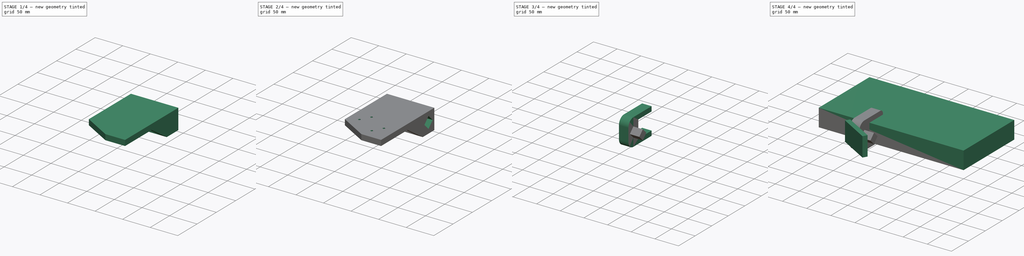
[diagram: build sequence overview — one tinted view per stage of 4, left to right]
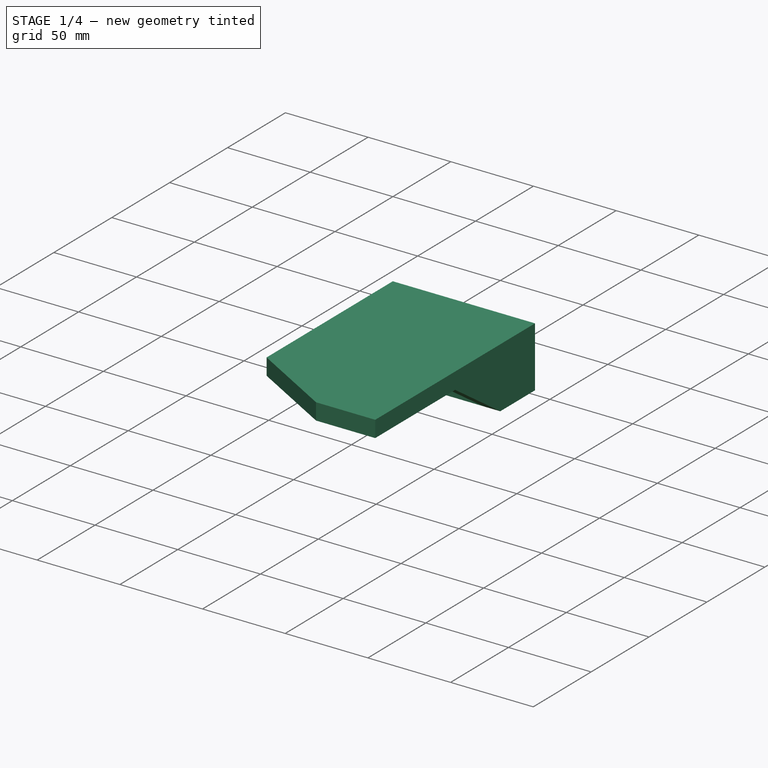
[diagram: stage 1 of 4 — iso view after this stage's code; geometry added in this stage tinted green]
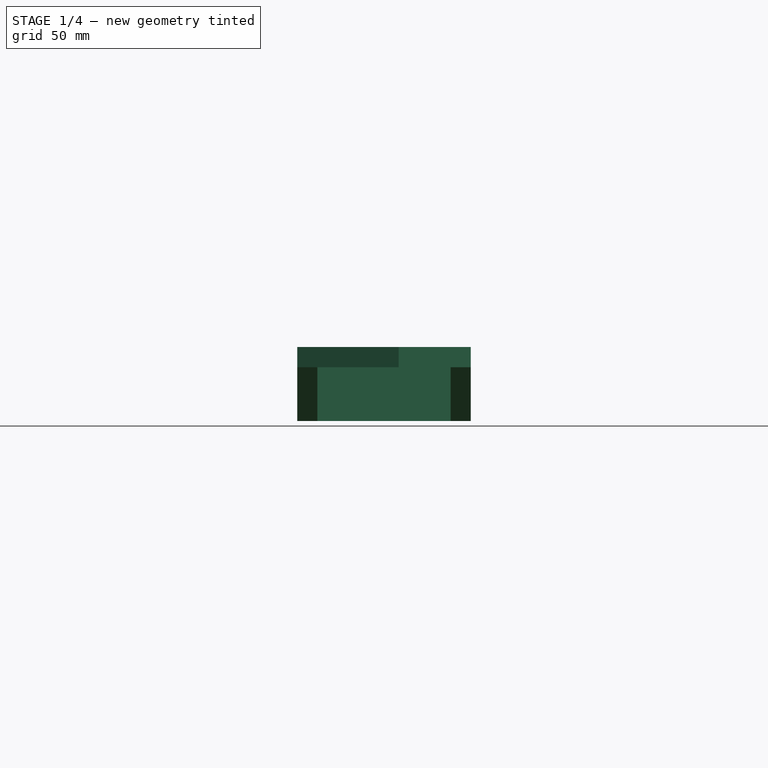
[diagram: stage 1 of 4 — front view after this stage's code; geometry added in this stage tinted green]
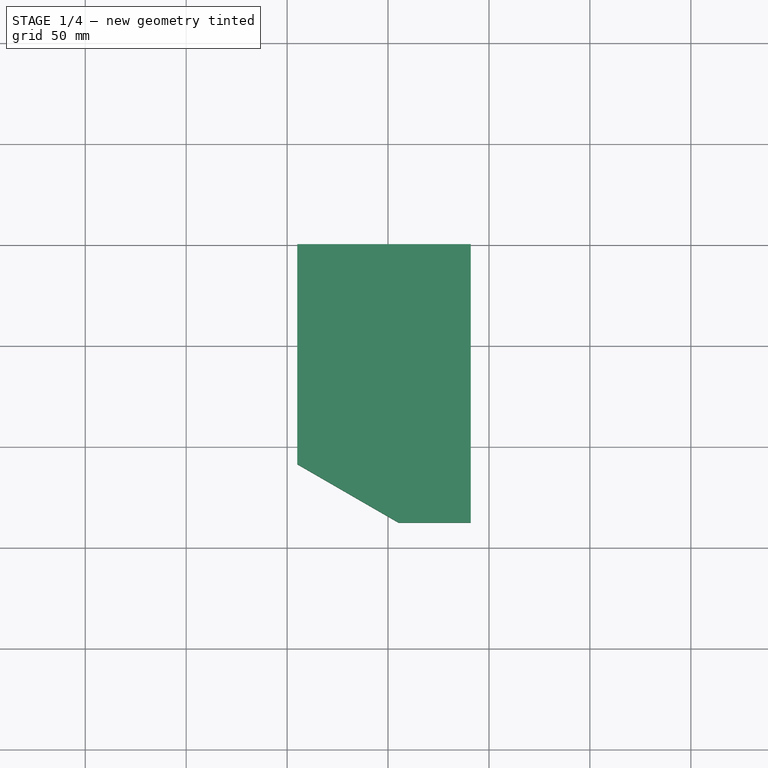
[diagram: stage 1 of 4 — top view after this stage's code; geometry added in this stage tinted green]
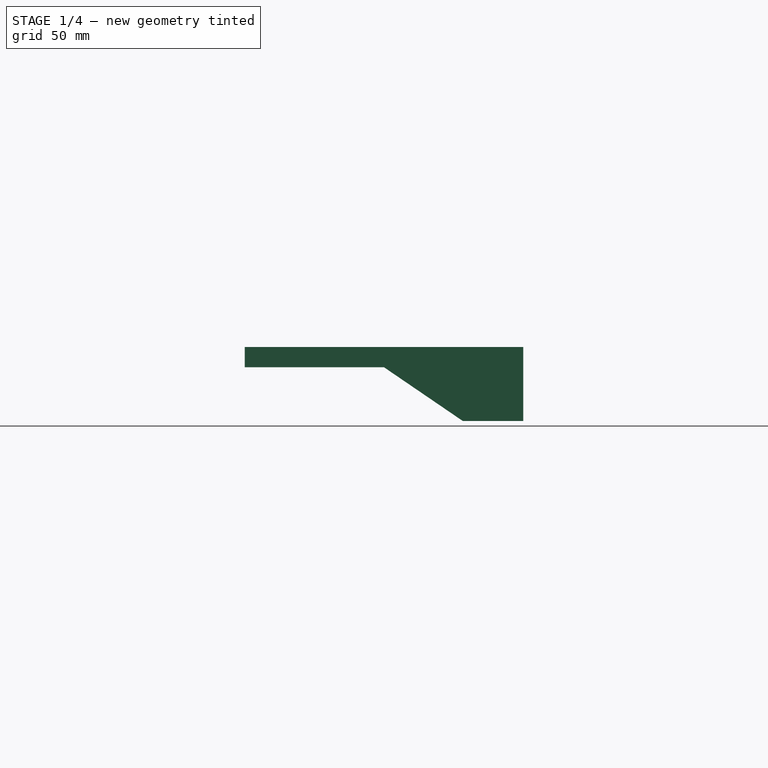
[diagram: stage 1 of 4 — right view after this stage's code; geometry added in this stage tinted green]
FCSTD DOCUMENT  (FreeCAD 0.20R29177 +426 (Git))
Label: kitchen_shelf
License: All rights reserved
LicenseURL: http://en.wikipedia.org/wiki/All_rights_reserved
objects: Sketcher::SketchObject×10, PartDesign::Pad×7, PartDesign::Body×4, PartDesign::Pocket×3, PartDesign::Fillet×3, Spreadsheet::Sheet×1, App::Part×1, PartDesign::ShapeBinder×1
note: 41 computed .brp shape members not serialized (recipe doc carries the construction recipe); baked Part::Feature solids carry a one-line shape summary decoded from their .brp

FEATURE [PartDesign::Body] Body001  label="Kitchen Counter"
  Group = -> [Sketch001,Pad001]
  Origin = -> Origin002
  Tip = -> Pad001
FEATURE [App::Part] Part  label="Immovable"
  Group = -> [Body,Body001]
  Origin = -> Origin001
FEATURE [Sketcher::SketchObject] Sketch002  label="Rack Bracket Base Body"
  FullyConstrained = true
  MapMode = 5
  Support = -> [XY_Plane003]
  sketch-geometry (5):
    g0: LineSegment StartX=-45 StartY=0 StartZ=0 EndX=41 EndY=0 EndZ=0
    g1: LineSegment StartX=41 StartY=0 StartZ=0 EndX=41 EndY=-138 EndZ=0
    g2: LineSegment StartX=41 StartY=-138 StartZ=0 EndX=5.22947 EndY=-138 EndZ=0
    g3: LineSegment StartX=-45 StartY=-109 StartZ=0 EndX=-45 EndY=0 EndZ=0
    g4: LineSegment StartX=-45 StartY=-109 StartZ=0 EndX=5.22947 EndY=-138 EndZ=0
  constraints (15):
    c: Coincident(g0,g1)
    c: Coincident(g1,g2)
    c: Coincident(g3,g0)
    c: Horizontal(g0)
    c: Horizontal(g2)
    c: Vertical(g1)
    c: Vertical(g3)
    c: PointOnObject(g0,g-1)
    c: Coincident(g3,g4)
    c: Coincident(g2,g4)
    c: DistanceY(g1,g1) = 138
    c: Angle(g2,g4) = 2.61799
    c: DistanceY(g3,g3) = 109
    c: DistanceX(g0,g0) = 86
    c: DistanceX(g0,g-1) = 45
FEATURE [PartDesign::Pad] Pad002  label="Rack Bracket Base Body Pad"
  Direction = (0,0,1)
  Length = 3
  Length2 = 10
  Profile = -> Sketch002
  ReferenceAxis = -> Sketch002 [N_Axis]
  Reversed = true
  Type = 0
  expr: Length = <<$params>>.thickness
FEATURE [Sketcher::SketchObject] Sketch003  label="Rack Bracket Ridge Sketch"
  ExternalGeometry = -> [Sketch002]
  FullyConstrained = true
  MapMode = 5
  Placement = pos=(0,0,-3) rot=(1,0,0;3.14159rad)
  Support = -> [Pad002]
  expr: Constraints[38] = <<$params>>.rack_bracket_depth
  sketch-geometry (14):
    g0: LineSegment StartX=-45 StartY=109 StartZ=0 EndX=-45 EndY=0 EndZ=0
    g1: LineSegment StartX=41 StartY=138 StartZ=0 EndX=41 EndY=0 EndZ=0
    g2: LineSegment StartX=5.22947 StartY=138 StartZ=0 EndX=-45 EndY=109 EndZ=0
    g3: LineSegment StartX=41 StartY=138 StartZ=0 EndX=5.22947 EndY=138 EndZ=0
    g4: LineSegment StartX=41 StartY=0 StartZ=0 EndX=-45 EndY=0 EndZ=0
    g5: LineSegment StartX=-35 StartY=30 StartZ=0 EndX=31 EndY=30 EndZ=0
    g6: LineSegment StartX=-35 StartY=103.226 StartZ=0 EndX=-35 EndY=30 EndZ=0
    g7: LineSegment StartX=-35 StartY=103.226 StartZ=0 EndX=7.90897 EndY=128 EndZ=0
    g8: LineSegment StartX=7.90897 StartY=128 StartZ=0 EndX=31 EndY=128 EndZ=0
    g9: LineSegment StartX=31 StartY=128 StartZ=0 EndX=31 EndY=30 EndZ=0
    g10: LineSegment StartX=-35 StartY=103.226 StartZ=0 EndX=-40 EndY=111.887 EndZ=0
    g11: LineSegment StartX=-35 StartY=103.226 StartZ=0 EndX=-45 EndY=103.226 EndZ=0
    g12: LineSegment StartX=7.90897 StartY=128 StartZ=0 EndX=7.90897 EndY=138 EndZ=0
    g13: LineSegment StartX=31 StartY=128 StartZ=0 EndX=41 EndY=128 EndZ=0
  constraints (39):
    c: Coincident(g0,g-3)
    c: PointOnObject(g0,g-1)
    c: Coincident(g1,g-4)
    c: PointOnObject(g1,g-1)
    c: Coincident(g2,g-4)
    c: Coincident(g2,g0)
    c: Coincident(g3,g1)
    c: Coincident(g3,g2)
    c: Coincident(g4,g1)
    c: Coincident(g4,g0)
    c: Vertical(g0)
    c: Vertical(g1)
    c: Horizontal(g5)
    c: Coincident(g6,g5)
    c: Vertical(g6)
    c: Coincident(g7,g6)
    c: Coincident(g8,g7)
    c: Horizontal(g8)
    c: Coincident(g9,g8)
    c: Coincident(g9,g5)
    c: Vertical(g9)
    c: Coincident(g10,g6)
    c: PointOnObject(g10,g2)
    c: Coincident(g11,g6)
    c: PointOnObject(g11,g0)
    c: Horizontal(g11)
    c: Coincident(g12,g7)
    c: PointOnObject(g12,g3)
    c: Vertical(g12)
    c: Coincident(g13,g8)
    c: PointOnObject(g13,g1)
    c: Horizontal(g13)
    c: Perpendicular(g7,g10)
    c: Perpendicular(g2,g10)
    c: Equal(g11,g10)
    c: Equal(g10,g12)
    c: Equal(g12,g13)
    c: DistanceX(g13,g13) = 10
    c: DistanceY(g0,g5) = 30
FEATURE [PartDesign::Pad] Pad003  label="Rack Bracket Ridge Pad"
  BaseFeature = -> Pad002
  Direction = (0,0,-1)
  Length = 33.6
  Length2 = 10
  Profile = -> Sketch003
  ReferenceAxis = -> Sketch003 [N_Axis]
  Refine = true
  Type = 0
  expr: Length = <<$params>>.counter_height - <<$params>>.thickness
FEATURE [Sketcher::SketchObject] Sketch004  label="Rack Bracket Ridge Shaping Cut Sketch"
  ExternalGeometry = -> [Sketch002]
  FullyConstrained = true
  MapMode = 5
  Placement = pos=(-45,0,0) rot=(0.57735,-0.57735,-0.57735;2.0944rad)
  Support = -> [Pad003]
  expr: Constraints[10] = <<$params>>.counter_height
  expr: Constraints[16] = <<$params>>.rack_bracket_ridge_height
  expr: Constraints[17] = <<$params>>.rack_bracket_depth
  sketch-geometry (7):
    g0: LineSegment StartX=0 StartY=0 StartZ=0 EndX=0 EndY=-36.6 EndZ=0
    g1: LineSegment StartX=0 StartY=-36.6 StartZ=0 EndX=30 EndY=-36.6 EndZ=0
    g2: LineSegment StartX=30 StartY=-36.6 StartZ=0 EndX=69 EndY=-10 EndZ=0
    g3: LineSegment StartX=69 StartY=-10 StartZ=0 EndX=138 EndY=-10 EndZ=0
    g4: LineSegment StartX=138 StartY=0 StartZ=0 EndX=138 EndY=-10 EndZ=0
    g5: LineSegment StartX=138 StartY=-10 StartZ=0 EndX=138 EndY=-36.6 EndZ=0
    g6: LineSegment StartX=30 StartY=-36.6 StartZ=0 EndX=138 EndY=-36.6 EndZ=0
  constraints (19):
    c: Coincident(g0,g-1)
    c: PointOnObject(g0,g-2)
    c: Coincident(g1,g0)
    c: Horizontal(g1)
    c: Coincident(g2,g1)
    c: Coincident(g3,g2)
    c: Horizontal(g3)
    c: Coincident(g4,g-3)
    c: Coincident(g4,g3)
    c: Vertical(g4)
    c: DistanceY(g0,g0) = 36.6
    c: Coincident(g5,g3)
    c: Vertical(g5)
    c: Coincident(g6,g2)
    c: Coincident(g6,g5)
    c: Horizontal(g6)
    c: DistanceY(g4,g4) = 10
    c: DistanceX(g1,g1) = 30
    c: DistanceX(g3,g3) = 69
FEATURE [PartDesign::Pocket] Pocket  label="Rack Bracket Ridge Shaping Cut"
  BaseFeature = -> Pad003
  Direction = (1,0,0)
  Length = 5
  Length2 = 5
  Profile = -> Sketch004
  ReferenceAxis = -> Sketch004 [N_Axis]
  Refine = true
  Type = 1
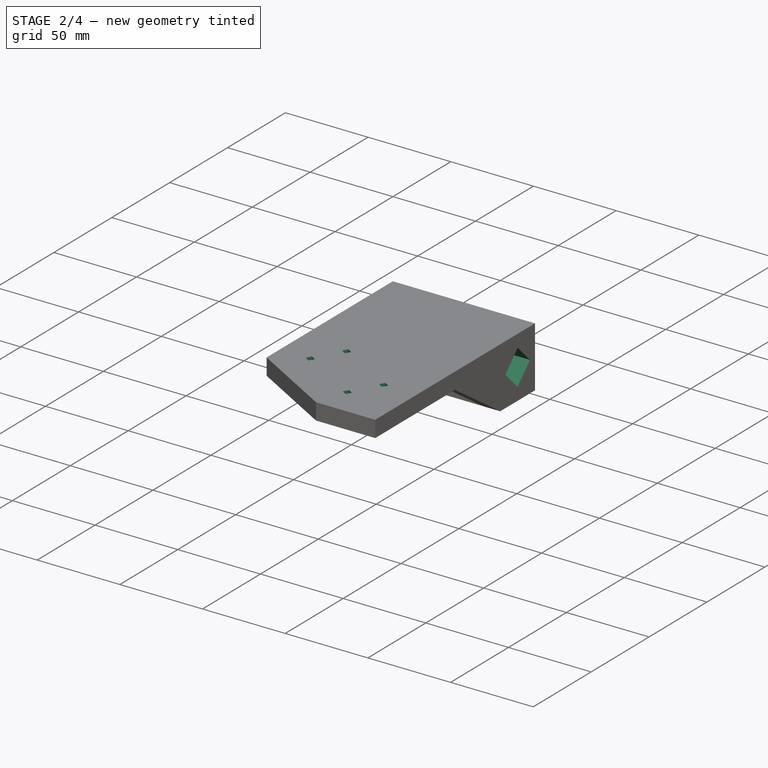
[diagram: stage 2 of 4 — iso view after this stage's code; geometry added in this stage tinted green]
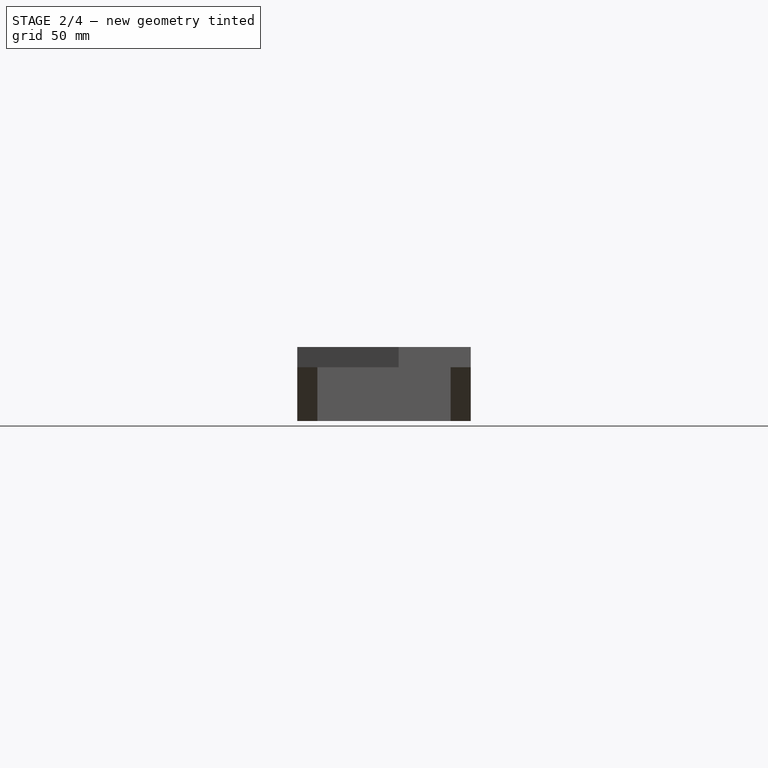
[diagram: stage 2 of 4 — front view after this stage's code; geometry added in this stage tinted green]
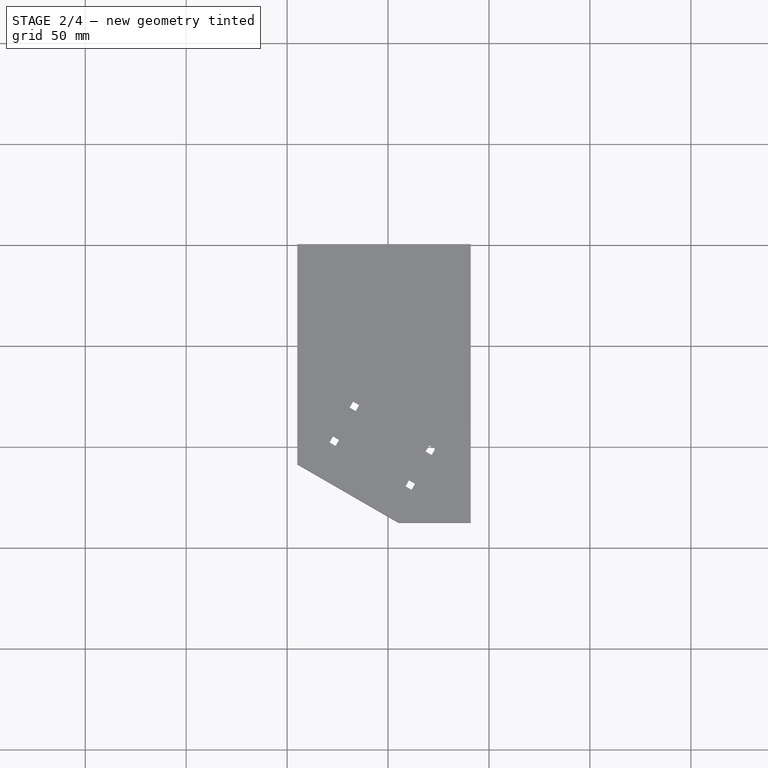
[diagram: stage 2 of 4 — top view after this stage's code; geometry added in this stage tinted green]
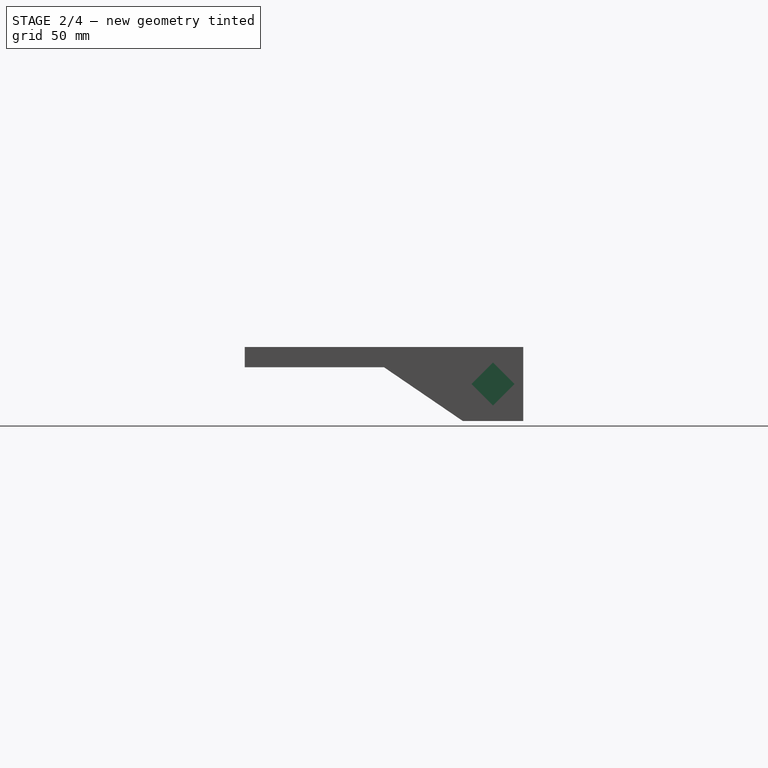
[diagram: stage 2 of 4 — right view after this stage's code; geometry added in this stage tinted green]
FEATURE [Sketcher::SketchObject] Sketch005  label="Rack Bracket Support Peg Cut Sketch"
  FullyConstrained = true
  MapMode = 5
  Placement = pos=(41,0,0) rot=(0.57735,0.57735,0.57735;2.0944rad)
  Support = -> [Pocket]
  expr: Constraints[10] = <<$params>>.counter_height
  expr: Constraints[16] = <<$params>>.rack_brack_peg_size + <<$params>>.tol
  expr: Constraints[17] = <<$params>>.rack_bracket_depth / 2
  expr: Constraints[18] = <<$params>>.counter_height / 2
  sketch-geometry (6):
    g0: LineSegment StartX=-15 StartY=-7.62269 StartZ=0 EndX=-25.6773 EndY=-18.3 EndZ=0
    g1: LineSegment StartX=-25.6773 StartY=-18.3 StartZ=0 EndX=-15 EndY=-28.9773 EndZ=0
    g2: LineSegment StartX=-15 StartY=-28.9773 StartZ=0 EndX=-4.32269 EndY=-18.3 EndZ=0
    g3: LineSegment StartX=-4.32269 StartY=-18.3 StartZ=0 EndX=-15 EndY=-7.62269 EndZ=0
    g4: LineSegment StartX=-15 StartY=0 StartZ=0 EndX=-15 EndY=-36.6 EndZ=0
    g5: LineSegment StartX=0 StartY=-36.6 StartZ=0 EndX=-15 EndY=-36.6 EndZ=0
  constraints (19):
    c: Coincident(g1,g0)
    c: Coincident(g2,g1)
    c: Coincident(g3,g2)
    c: Coincident(g3,g0)
    c: Perpendicular(g2,g1)
    c: PointOnObject(g4,g-1)
    c: Vertical(g4)
    c: PointOnObject(g5,g-2)
    c: Coincident(g5,g4)
    c: Horizontal(g5)
    c: DistanceY(g4,g4) = 36.6
    c: PointOnObject(g0,g4)
    c: PointOnObject(g1,g4)
    c: Perpendicular(g3,g0)
    c: Perpendicular(g0,g1)
    c: Equal(g3,g0)
    c: Distance(g1) = 15.1
    c: DistanceX(g5,g5) = 15
    c: DistanceY(g2,g-1) = 18.3
FEATURE [PartDesign::Pocket] Pocket001  label="Rack Bracket Support Peg Cut"
  BaseFeature = -> Pocket
  Direction = (-1,0,0)
  Length = 20.1
  Length2 = 5
  Profile = -> Sketch005
  ReferenceAxis = -> Sketch005 [N_Axis]
  Refine = true
  Type = 1
  expr: Length = <<$params>>.rack_bracket_peg_depth + <<$params>>.tol
FEATURE [Sketcher::SketchObject] Sketch006  label="Rack Bracket Support Peg Fill Sketch"
  ExternalGeometry = -> [Sketch002]
  FullyConstrained = true
  MapMode = 5
  Placement = pos=(0,0,0) rot=(0,0.707107,0.707107;3.14159rad)
  Support = -> [Pocket001]
  expr: Constraints[15] = <<$params>>.rack_bracket_peg_depth + <<$params>>.tol
  expr: Constraints[9] = <<$params>>.counter_height
  sketch-geometry (6):
    g0: LineSegment StartX=-20.9 StartY=0 StartZ=0 EndX=24.9 EndY=0 EndZ=0
    g1: LineSegment StartX=24.9 StartY=0 StartZ=0 EndX=24.9 EndY=-36.6 EndZ=0
    g2: LineSegment StartX=24.9 StartY=-36.6 StartZ=0 EndX=-20.9 EndY=-36.6 EndZ=0
    g3: LineSegment StartX=-20.9 StartY=-36.6 StartZ=0 EndX=-20.9 EndY=0 EndZ=0
    g4: LineSegment StartX=-20.9 StartY=0 StartZ=0 EndX=-41 EndY=0 EndZ=0
    g5: LineSegment StartX=45 StartY=0 StartZ=0 EndX=24.9 EndY=0 EndZ=0
  constraints (16):
    c: Coincident(g0,g1)
    c: Coincident(g1,g2)
    c: Coincident(g2,g3)
    c: Coincident(g3,g0)
    c: Horizontal(g0)
    c: Horizontal(g2)
    c: Vertical(g1)
    c: Vertical(g3)
    c: PointOnObject(g0,g-1)
    c: DistanceY(g1,g1) = 36.6
    c: Coincident(g4,g0)
    c: Coincident(g4,g-3)
    c: Coincident(g5,g-4)
    c: Coincident(g5,g0)
    c: Equal(g4,g5)
    c: DistanceX(g4,g4) = 20.1
FEATURE [PartDesign::Pad] Pad004  label="Rack Bracket Support Peg Fill Pad"
  BaseFeature = -> Pocket001
  Direction = (0,1,-2e-16)
  Length = 30
  Length2 = 10
  Profile = -> Sketch006
  ReferenceAxis = -> Sketch006 [N_Axis]
  Refine = true
  Reversed = true
  Type = 0
  expr: Length = <<$params>>.rack_bracket_depth
FEATURE [Sketcher::SketchObject] Sketch007  label="Rack Bracket Loop Cut Sketch"
  ExternalGeometry = -> [Sketch002]
  FullyConstrained = true
  MapMode = 5
  Support = -> [Pad004]
  sketch-geometry (22):
    g0: LineSegment StartX=-45 StartY=-85 StartZ=0 EndX=32.7728 EndY=-129.902 EndZ=0
    g1: LineSegment StartX=41 StartY=-115.652 StartZ=0 EndX=32.7728 EndY=-129.902 EndZ=0
    g2: LineSegment StartX=-45 StartY=-66 StartZ=0 EndX=41 EndY=-115.652 EndZ=0
    g3: LineSegment StartX=-45 StartY=-66 StartZ=0 EndX=-45 EndY=-85 EndZ=0
    g4: LineSegment StartX=-19.0192 StartY=-81 StartZ=0 EndX=-17.2872 EndY=-78 EndZ=0
    g5: LineSegment StartX=-17.2872 StartY=-78 StartZ=0 EndX=-14.2872 EndY=-79.7321 EndZ=0
    g6: LineSegment StartX=-14.2872 StartY=-79.7321 StartZ=0 EndX=-16.0192 EndY=-82.7321 EndZ=0
    g7: LineSegment StartX=18.6218 StartY=-102.732 StartZ=0 EndX=20.3538 EndY=-99.7321 EndZ=0
    g8: LineSegment StartX=20.3538 StartY=-99.7321 StartZ=0 EndX=23.3538 EndY=-101.464 EndZ=0
    g9: LineSegment StartX=23.3538 StartY=-101.464 StartZ=0 EndX=21.6218 EndY=-104.464 EndZ=0
    g10: LineSegment StartX=-27.2465 StartY=-95.25 StartZ=0 EndX=-28.9785 EndY=-98.25 EndZ=0
    g11: LineSegment StartX=-28.9785 StartY=-98.25 StartZ=0 EndX=-25.9785 EndY=-99.9821 EndZ=0
    g12: LineSegment StartX=-25.9785 StartY=-99.9821 StartZ=0 EndX=-24.2465 EndY=-96.9821 EndZ=0
    g13: LineSegment StartX=10.3945 StartY=-116.982 StartZ=0 EndX=8.66249 EndY=-119.982 EndZ=0
    g14: LineSegment StartX=8.66249 StartY=-119.982 StartZ=0 EndX=11.6625 EndY=-121.714 EndZ=0
    g15: LineSegment StartX=11.6625 StartY=-121.714 StartZ=0 EndX=13.3945 EndY=-118.714 EndZ=0
    g16: LineSegment StartX=-19.0192 StartY=-81 StartZ=0 EndX=-16.0192 EndY=-82.7321 EndZ=0
    g17: LineSegment StartX=-27.2465 StartY=-95.25 StartZ=0 EndX=-24.2465 EndY=-96.9821 EndZ=0
    g18: LineSegment StartX=18.6218 StartY=-102.732 StartZ=0 EndX=21.6218 EndY=-104.464 EndZ=0
    g19: LineSegment StartX=10.3945 StartY=-116.982 StartZ=0 EndX=13.3945 EndY=-118.714 EndZ=0
    g20: LineSegment StartX=-19.0192 StartY=-81 StartZ=0 EndX=-27.2465 EndY=-95.25 EndZ=0
    g21: LineSegment StartX=21.6218 StartY=-104.464 StartZ=0 EndX=13.3945 EndY=-118.714 EndZ=0
  constraints (64):
    c: PointOnObject(g0,g-3)
    c: PointOnObject(g1,g-4)
    c: Coincident(g1,g0)
    c: PointOnObject(g2,g-3)
    c: Parallel(g0,g-5)
    c: Parallel(g2,g0)
    c: Coincident(g3,g2)
    c: Coincident(g3,g0)
    c: DistanceY(g3,g3) = 19
    c: PointOnObject(g4,g2)
    c: Coincident(g5,g4)
    c: Coincident(g6,g5)
    c: PointOnObject(g6,g2)
    c: PointOnObject(g7,g2)
    c: Coincident(g8,g7)
    c: Coincident(g9,g8)
    c: PointOnObject(g9,g2)
    c: PointOnObject(g10,g0)
    c: Coincident(g11,g10)
    c: Coincident(g12,g11)
    c: PointOnObject(g12,g0)
    c: PointOnObject(g13,g0)
    c: Coincident(g14,g13)
    c: Coincident(g15,g14)
    c: PointOnObject(g15,g0)
    c: Coincident(g16,g4)
    c: Coincident(g16,g6)
    c: Coincident(g17,g10)
    c: Coincident(g17,g12)
    c: Coincident(g18,g7)
    c: Coincident(g18,g9)
    c: Coincident(g19,g13)
    c: Coincident(g19,g15)
    c: Parallel(g6,g12)
    c: Parallel(g12,g10)
    c: Parallel(g10,g4)
    c: Parallel(g4,g9)
    c: Parallel(g9,g7)
    c: Parallel(g7,g15)
    c: Parallel(g15,g13)
    c: Parallel(g13,g1)
    c: Perpendicular(g0,g1)
    c: Parallel(g11,g14)
    c: Parallel(g14,g8)
    c: Parallel(g8,g5)
    c: Parallel(g5,g2)
    c: Equal(g15,g14)
    c: Equal(g14,g9)
    c: Equal(g9,g8)
    c: Equal(g8,g12)
    c: Equal(g12,g11)
    c: Equal(g11,g5)
    c: Equal(g5,g6)
    c: DistanceX(g11,g11) = 3
    c: Coincident(g20,g4)
    c: Coincident(g20,g10)
    c: Perpendicular(g0,g20)
    c: Coincident(g21,g9)
    c: Coincident(g21,g15)
    c: Perpendicular(g21,g2)
    c: DistanceY(g-5,g0) = 24
    c: Coincident(g1,g2)
    c: Distance(g5,g7) = 40
    c: Distance(g4,g2) = 30
FEATURE [PartDesign::Pocket] Pocket002  label="Rack Bracket Loop Cut"
  BaseFeature = -> Pad004
  Direction = (0,0,-1)
  Length = 3
  Length2 = 5
  Profile = -> Sketch007
  ReferenceAxis = -> Sketch007 [N_Axis]
  Refine = true
  Type = 0
  expr: Length = <<$params>>.thickness
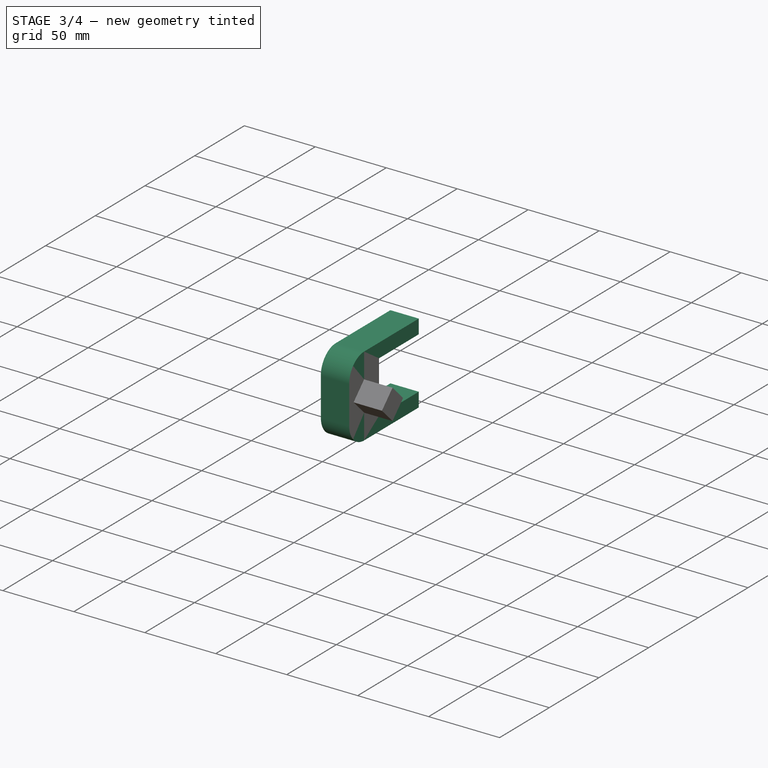
[diagram: stage 3 of 4 — iso view after this stage's code; geometry added in this stage tinted green]
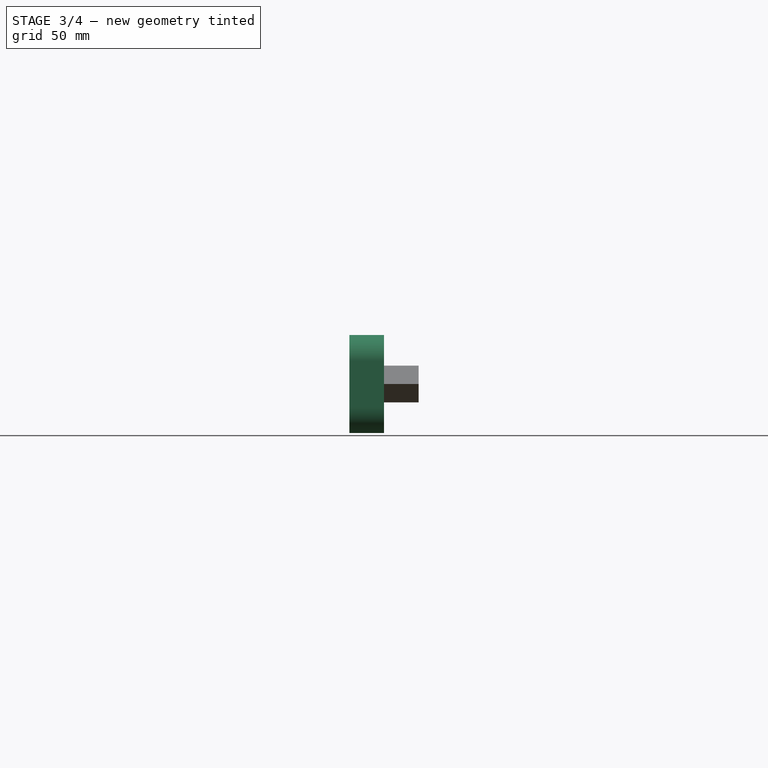
[diagram: stage 3 of 4 — front view after this stage's code; geometry added in this stage tinted green]
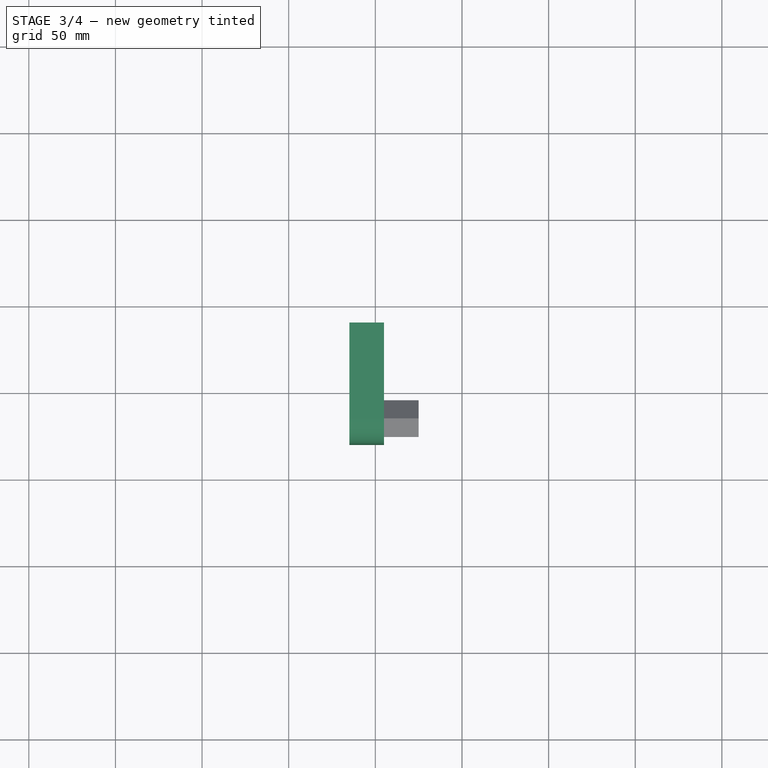
[diagram: stage 3 of 4 — top view after this stage's code; geometry added in this stage tinted green]
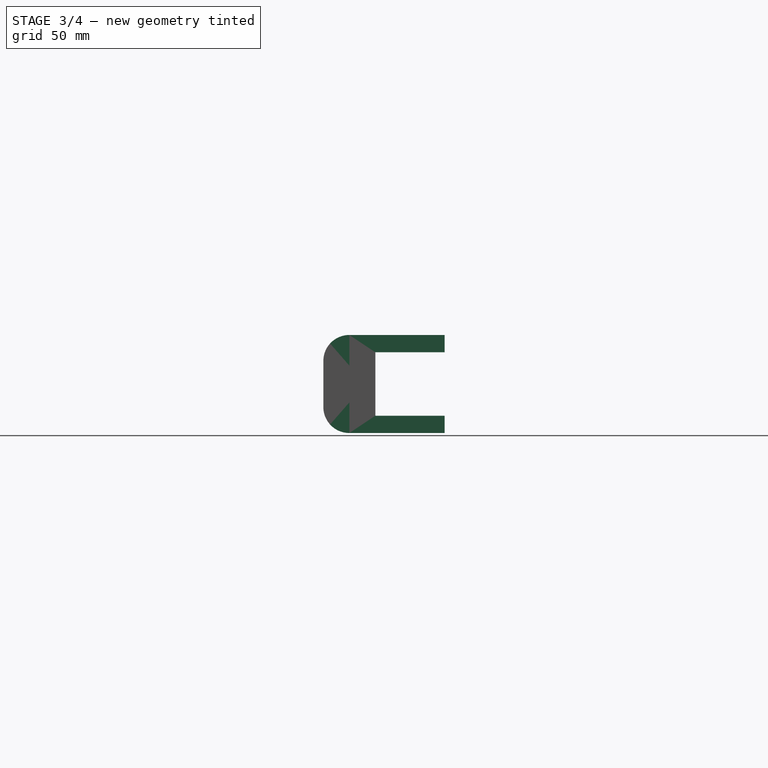
[diagram: stage 3 of 4 — right view after this stage's code; geometry added in this stage tinted green]
FEATURE [PartDesign::Fillet] Fillet  label="Rack Bracket Fillet"
  Base = -> Pocket002 [Edge56,Edge38,Edge4]
  BaseFeature = -> Pocket002
  Radius = 10
  Refine = true
  SupportTransform = false
  UseAllEdges = false
FEATURE [PartDesign::Body] Body002  label="Rack Bracket"
  Group = -> [Sketch002,Pad002,Sketch003,Sketch004,Pad003,Pocket,Sketch005,Pocket001,Sketch006,Pad004,Sketch007,Pocket002,Fillet]
  Origin = -> Origin003
  Tip = -> Fillet
FEATURE [PartDesign::ShapeBinder] ShapeBinder
  Support = -> [Fillet]
  TraceSupport = false
FEATURE [Sketcher::SketchObject] Sketch008  label="Support Bracket Base Body Pad Sketch"
  FullyConstrained = true
  MapMode = 5
  Placement = pos=(-45,0,0) rot=(0.57735,-0.57735,-0.57735;2.0944rad)
  Support = -> [ShapeBinder]
  expr: Constraints[20] = <<$params>>.counter_height
  expr: Constraints[21] = <<$params>>.support_bracket_counter_depth
  expr: Constraints[23] = <<$params>>.support_bracket_thickness
  expr: Constraints[24] = <<$params>>.rack_bracket_depth
  sketch-geometry (9):
    g0: LineSegment StartX=0 StartY=0 StartZ=0 EndX=-40 EndY=0 EndZ=0
    g1: LineSegment StartX=-40 StartY=0 StartZ=0 EndX=-40 EndY=10 EndZ=0
    g2: LineSegment StartX=-40 StartY=10 StartZ=0 EndX=30 EndY=10 EndZ=0
    g3: LineSegment StartX=30 StartY=10 StartZ=0 EndX=30 EndY=-46.6 EndZ=0
    g4: LineSegment StartX=30 StartY=-46.6 StartZ=0 EndX=-40 EndY=-46.6 EndZ=0
    g5: LineSegment StartX=-40 StartY=-46.6 StartZ=0 EndX=-40 EndY=-36.6 EndZ=0
    g6: LineSegment StartX=-40 StartY=-36.6 StartZ=0 EndX=0 EndY=-36.6 EndZ=0
    g7: LineSegment StartX=0 StartY=0 StartZ=0 EndX=0 EndY=-36.6 EndZ=0
    g8: LineSegment StartX=-40 StartY=0 StartZ=0 EndX=-40 EndY=-36.6 EndZ=0
  constraints (25):
    c: Coincident(g0,g-1)
    c: PointOnObject(g0,g-1)
    c: Coincident(g1,g0)
    c: Vertical(g1)
    c: Coincident(g2,g1)
    c: Horizontal(g2)
    c: Coincident(g3,g2)
    c: Vertical(g3)
    c: Coincident(g4,g3)
    c: Horizontal(g4)
    c: Coincident(g5,g4)
    c: Coincident(g6,g5)
    c: Horizontal(g6)
    c: Coincident(g7,g0)
    c: Coincident(g7,g6)
    c: Vertical(g5)
    c: PointOnObject(g6,g-2)
    c: Coincident(g8,g0)
    c: Coincident(g8,g5)
    c: Vertical(g8)
    c: DistanceY(g7,g7) = 36.6
    c: DistanceX(g0,g0) = 40
    c: Equal(g1,g5)
    c: DistanceY(g5,g5) = 10
    c: DistanceX(g6,g3) = 30
FEATURE [PartDesign::Pad] Pad005  label="Support Bracket Base Body Pad"
  Direction = (-1,0,0)
  Length = 20
  Length2 = 10
  Profile = -> Sketch008
  ReferenceAxis = -> Sketch008 [N_Axis]
  Type = 0
  expr: Length = <<$params>>.support_bracket_width
FEATURE [Sketcher::SketchObject] Sketch009  label="Support Bracket Peg Pad Sketch"
  FullyConstrained = true
  MapMode = 5
  Placement = pos=(-45,0,0) rot=(0.57735,0.57735,0.57735;2.0944rad)
  Support = -> [Pad005]
  expr: Constraints[15] = <<$params>>.rack_brack_peg_size
  expr: Constraints[17] = <<$params>>.rack_bracket_depth / 2
  expr: Constraints[18] = <<$params>>.counter_height / 2
  sketch-geometry (7):
    g0: LineSegment StartX=-15 StartY=-7.6934 StartZ=0 EndX=-4.3934 EndY=-18.3 EndZ=0
    g1: LineSegment StartX=-4.3934 StartY=-18.3 StartZ=0 EndX=-15 EndY=-28.9066 EndZ=0
    g2: LineSegment StartX=-15 StartY=-28.9066 StartZ=0 EndX=-25.6066 EndY=-18.3 EndZ=0
    g3: LineSegment StartX=-25.6066 StartY=-18.3 StartZ=0 EndX=-15 EndY=-7.6934 EndZ=0
    g4: LineSegment StartX=-15 StartY=-7.6934 StartZ=0 EndX=-15 EndY=-28.9066 EndZ=0
    g5: LineSegment StartX=-4.3934 StartY=-18.3 StartZ=0 EndX=-15 EndY=-18.3 EndZ=0
    g6: LineSegment StartX=-15 StartY=-18.3 StartZ=0 EndX=-25.6066 EndY=-18.3 EndZ=0
  constraints (19):
    c: Coincident(g1,g0)
    c: Coincident(g2,g1)
    c: Coincident(g3,g2)
    c: Coincident(g3,g0)
    c: Coincident(g4,g0)
    c: Coincident(g4,g1)
    c: Vertical(g4)
    c: Coincident(g5,g0)
    c: PointOnObject(g5,g4)
    c: Horizontal(g5)
    c: Coincident(g6,g5)
    c: Coincident(g6,g2)
    c: Horizontal(g6)
    c: Equal(g3,g2)
    c: Equal(g2,g1)
    c: Distance(g0) = 15
    c: Perpendicular(g3,g2)
    c: DistanceX(g5,g-1) = 15
    c: DistanceY(g5,g-1) = 18.3
FEATURE [PartDesign::Pad] Pad006  label="Support Bracket Peg Pad"
  BaseFeature = -> Pad005
  Direction = (1,0,0)
  Length = 20
  Length2 = 10
  Profile = -> Sketch009
  ReferenceAxis = -> Sketch009 [N_Axis]
  Type = 0
  expr: Length = <<$params>>.rack_bracket_peg_depth
FEATURE [PartDesign::Fillet] Fillet001  label="Support Bracket Fillet 001"
  Base = -> Pad006 [Edge28,Edge26]
  BaseFeature = -> Pad006
  Radius = 15
  SupportTransform = false
  UseAllEdges = false
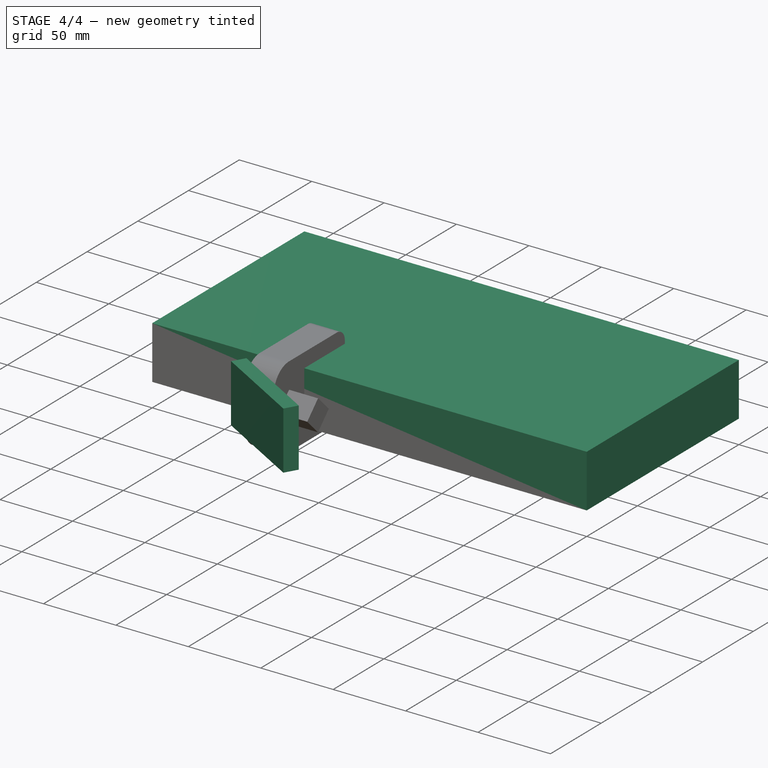
[diagram: stage 4 of 4 — iso view after this stage's code; geometry added in this stage tinted green]
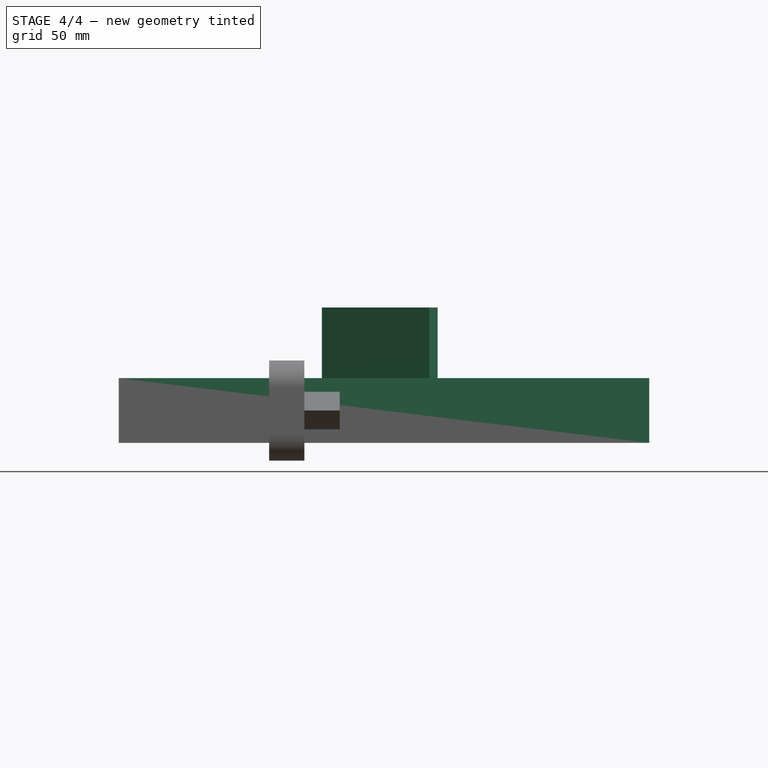
[diagram: stage 4 of 4 — front view after this stage's code; geometry added in this stage tinted green]
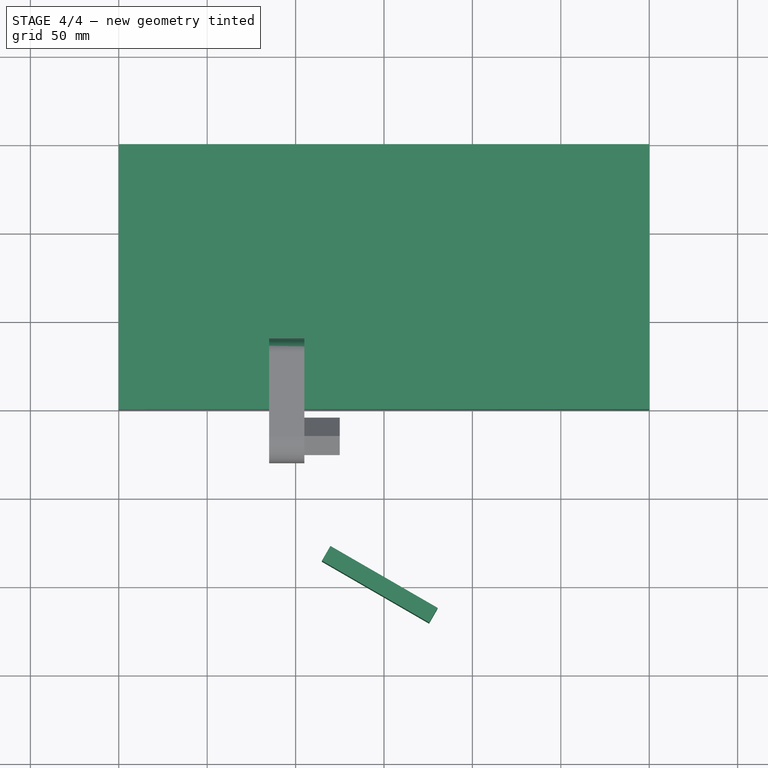
[diagram: stage 4 of 4 — top view after this stage's code; geometry added in this stage tinted green]
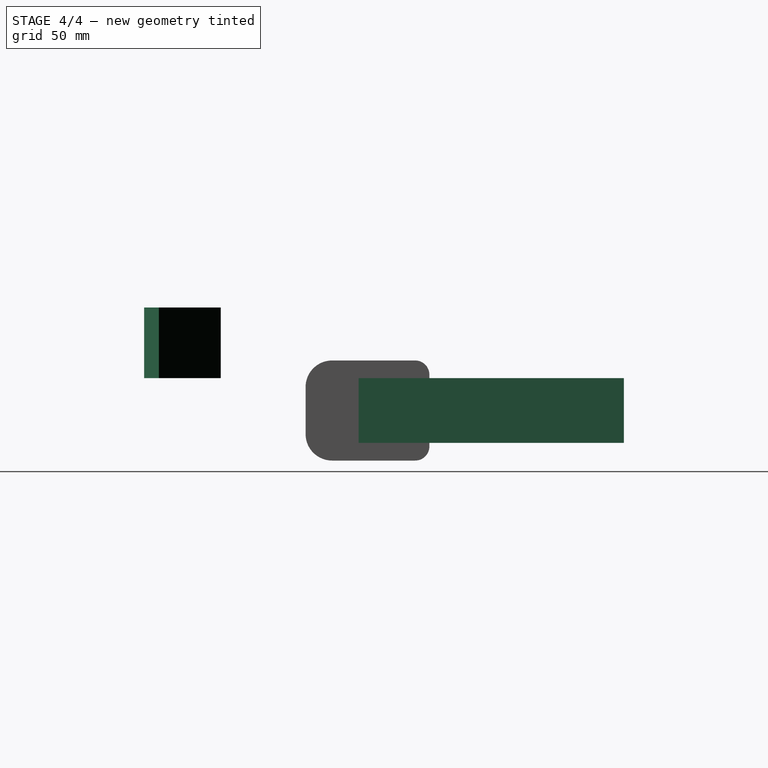
[diagram: stage 4 of 4 — right view after this stage's code; geometry added in this stage tinted green]
FEATURE [Sketcher::SketchObject] Sketch  label="Disk Rack Foot Sketch"
  FullyConstrained = true
  MapMode = 5
  Support = -> [XY_Plane]
  sketch-geometry (6):
    g0: LineSegment StartX=30.3109 StartY=-113 StartZ=0 EndX=-30.3109 EndY=-78 EndZ=0
    g1: LineSegment StartX=-30.3109 StartY=0 StartZ=0 EndX=-30.3109 EndY=-78 EndZ=0
    g2: LineSegment StartX=30.3109 StartY=0 StartZ=0 EndX=30.3109 EndY=-113 EndZ=0
    g3: LineSegment StartX=-30.3109 StartY=-78 StartZ=0 EndX=-35.1109 EndY=-86.3138 EndZ=0
    g4: LineSegment StartX=30.3109 StartY=-113 StartZ=0 EndX=25.5109 EndY=-121.314 EndZ=0
    g5: LineSegment StartX=25.5109 StartY=-121.314 StartZ=0 EndX=-35.1109 EndY=-86.3138 EndZ=0
  constraints (17):
    c: PointOnObject(g1,g-1)
    c: Coincident(g1,g0)
    c: Coincident(g2,g0)
    c: Vertical(g2)
    c: Vertical(g1)
    c: DistanceY(g1,g1) = 78
    c: DistanceY(g2,g2) = 113
    c: Distance(g0) = 70
    c: Coincident(g3,g0)
    c: Distance(g3) = 9.6
    c: Perpendicular(g3,g0)
    c: Coincident(g4,g0)
    c: Coincident(g5,g4)
    c: Coincident(g5,g3)
    c: Perpendicular(g5,g3)
    c: Perpendicular(g5,g4)
    c: Symmetric(g1,g2,g-2)
FEATURE [Spreadsheet::Sheet] Spreadsheet  label="$params"
  cells = A1=name; B1=value; A2=tol; B2(tol)=0.1; A3=thickness; B3(thickness)=3; A4=counter_height; B4(counter_height)=36.6; A5=rack_bracket_depth; B5(rack_bracket_depth)=30; A7=rack_bracket_ridge_height; B7(rack_bracket_ridge_height)=10; A8=rack_brack_peg_size; B8(rack_brack_peg_size)=15; A9=rack_bracket_peg_depth; B9(rack_bracket_peg_depth)=20; A10=support_bracket_thickness; B10(support_bracket_thickness)=10; A11=support bracket_counter_depth; B11(support_bracket_counter_depth)=40; A12=support_bracket_width; B12(support_bracket_width)=20
FEATURE [PartDesign::Pad] Pad  label="Disk Rack Foot Pad"
  Direction = (0,0,1)
  Length = 40
  Length2 = 10
  Profile = -> Sketch
  ReferenceAxis = -> Sketch [N_Axis]
  Type = 0
FEATURE [PartDesign::Body] Body  label="Dish Rack Body"
  Group = -> [Sketch,Pad]
  Origin = -> Origin
  Tip = -> Pad
FEATURE [Sketcher::SketchObject] Sketch001  label="Kitchen Counter Body Sketch"
  FullyConstrained = true
  MapMode = 5
  Support = -> [XY_Plane002]
  sketch-geometry (4):
    g0: LineSegment StartX=-150 StartY=150 StartZ=0 EndX=150 EndY=150 EndZ=0
    g1: LineSegment StartX=150 StartY=150 StartZ=0 EndX=150 EndY=0 EndZ=0
    g2: LineSegment StartX=150 StartY=0 StartZ=0 EndX=-150 EndY=0 EndZ=0
    g3: LineSegment StartX=-150 StartY=0 StartZ=0 EndX=-150 EndY=150 EndZ=0
  constraints (11):
    c: Coincident(g0,g1)
    c: Coincident(g1,g2)
    c: Coincident(g2,g3)
    c: Coincident(g3,g0)
    c: Horizontal(g2)
    c: Vertical(g1)
    c: Vertical(g3)
    c: PointOnObject(g1,g-1)
    c: DistanceY(g1,g1) = 150
    c: DistanceX(g0,g0) = 300
    c: Symmetric(g0,g0,g-2)
FEATURE [PartDesign::Pad] Pad001  label="Kitchen Counter Body Pad"
  Direction = (0,0,1)
  Length = 36.6
  Length2 = 10
  Profile = -> Sketch001
  ReferenceAxis = -> Sketch001 [N_Axis]
  Reversed = true
  Type = 0
  expr: Length = <<$params>>.counter_height
FEATURE [PartDesign::Fillet] Fillet002  label="Support Bracket Fillet 002"
  Base = -> Fillet001 [Edge16,Edge30]
  BaseFeature = -> Fillet001
  Radius = 8
  SupportTransform = false
  UseAllEdges = false
FEATURE [PartDesign::Body] Body003  label="Support Bracket"
  Group = -> [ShapeBinder,Sketch008,Pad005,Sketch009,Pad006,Fillet001,Fillet002]
  Origin = -> Origin004
  Tip = -> Fillet002
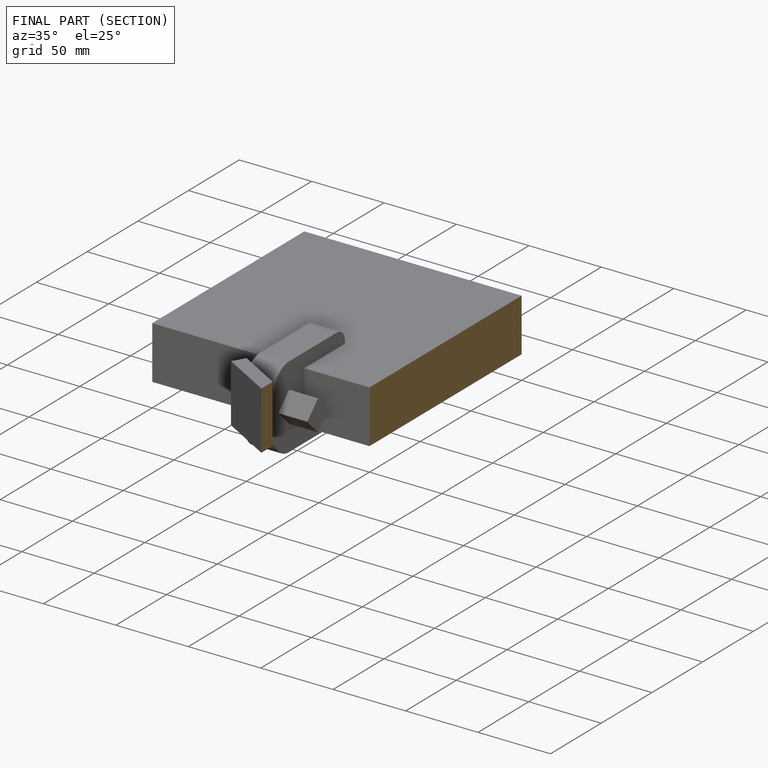
[diagram: finished part — half-section view (interior)]
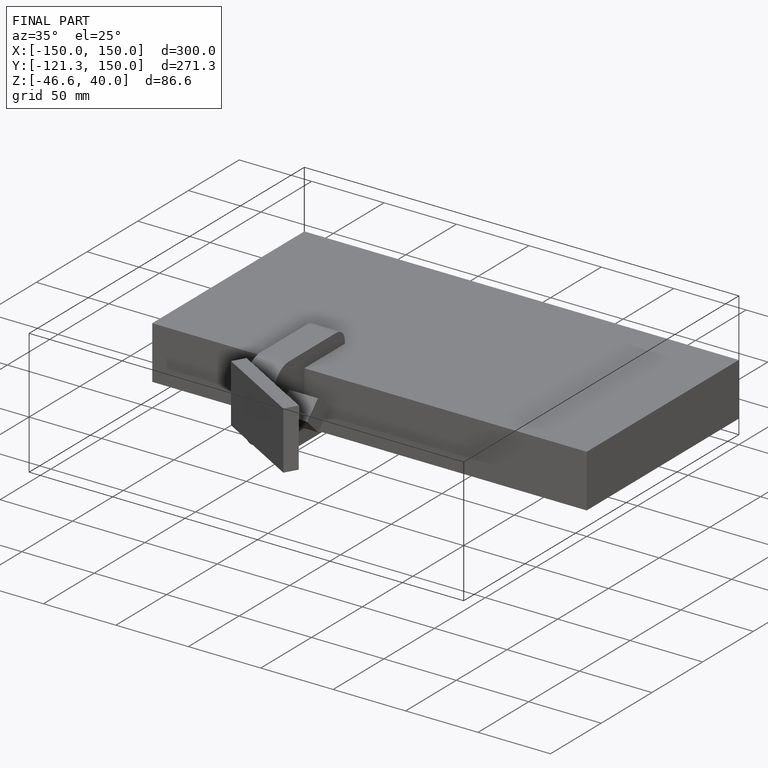
[diagram: finished part — iso view with bounding-box wireframe]
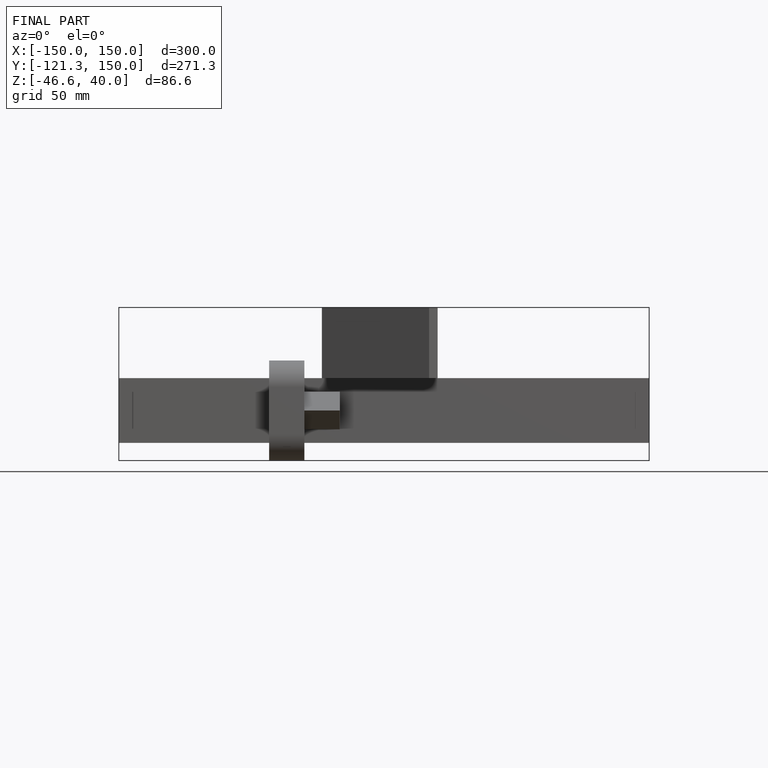
[diagram: finished part — front view with bounding-box wireframe]
